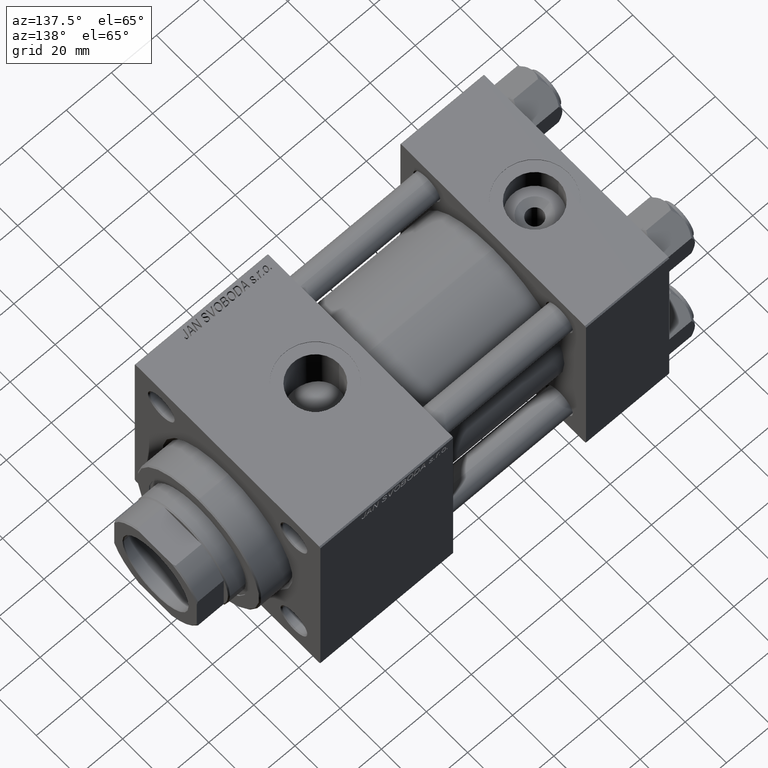
[diagram: clean part render]
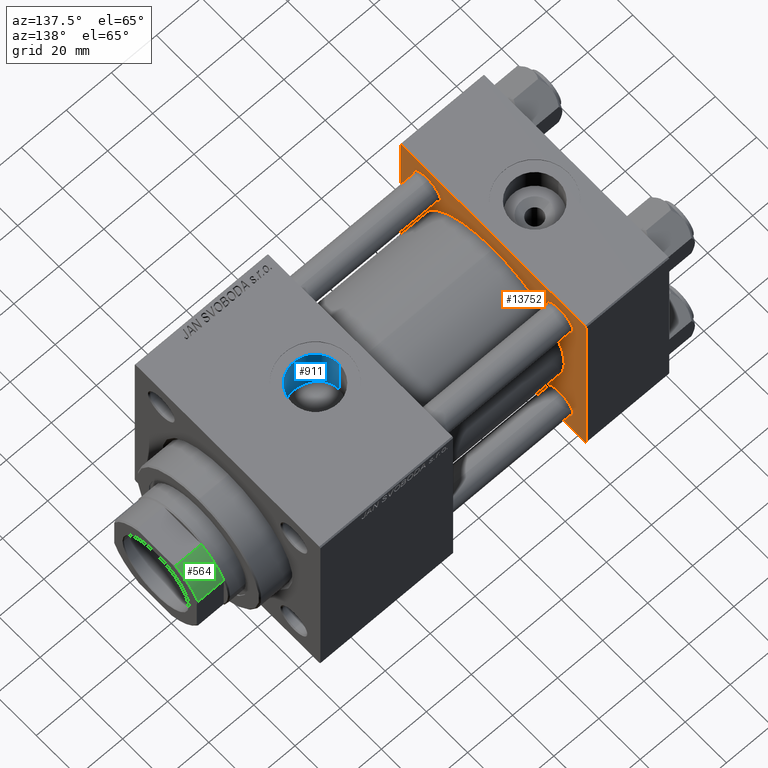
[diagram: same view with three faces highlighted in distinct colors, each labeled with its STEP entity id]
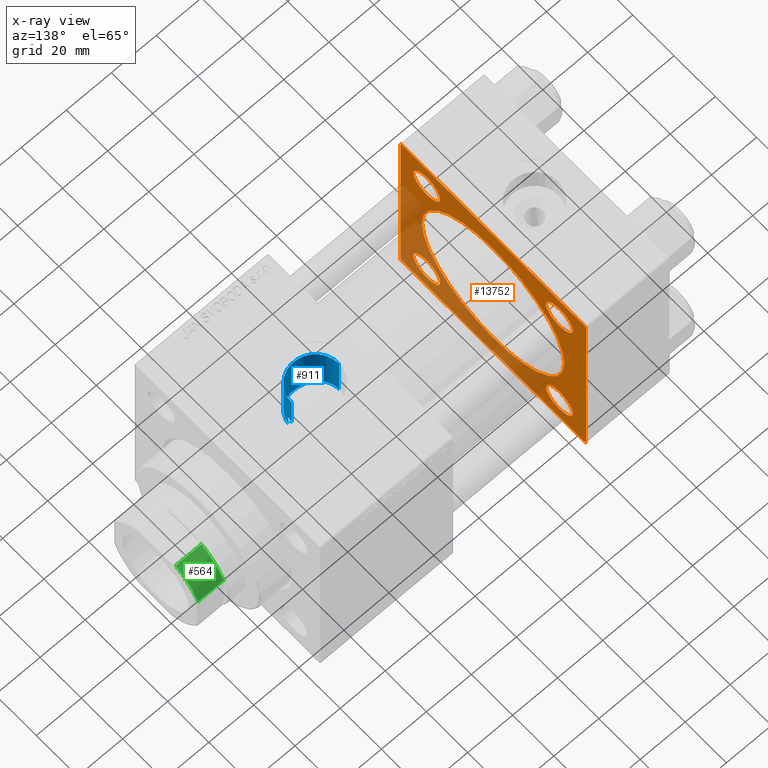
[diagram: x-ray of the same camera — body ghosted, the three highlighted faces saturated]
A machine part, auxiliary view with three faces highlighted in distinct colors.
The next image is the same camera in x-ray (body ghosted, the three faces saturated) — at least one of them is partly hidden behind the body in this view.
Their STEP definitions:

[orange] entity #13752 — the highlighted planar face has unit normal (-1, 0, 0).
#244 = EDGE_CURVE ( 'NONE', #15908, #43203, #35316, .T. ) ;
#428 = AXIS2_PLACEMENT_3D ( 'NONE', #48088, #17411, #9569 ) ;
#520 = AXIS2_PLACEMENT_3D ( 'NONE', #4960, #28288, #32081 ) ;
#543 = ORIENTED_EDGE ( 'NONE', *, *, #6413, .T. ) ;
#570 = EDGE_LOOP ( 'NONE', ( #40364, #5873 ) ) ;
#621 = ORIENTED_EDGE ( 'NONE', *, *, #25999, .F. ) ;
#998 = DIRECTION ( 'NONE',  ( 0.000000000000000000, 0.000000000000000000, 1.000000000000000000 ) ) ;
#1283 = EDGE_CURVE ( 'NONE', #10636, #7076, #48399, .T. ) ;
#1341 = VECTOR ( 'NONE', #13678, 1000.000000000000114 ) ;
#1342 = LINE ( 'NONE', #28722, #2357 ) ;
#1442 = VERTEX_POINT ( 'NONE', #18948 ) ;
#1823 = ORIENTED_EDGE ( 'NONE', *, *, #47737, .T. ) ;
#2014 = CARTESIAN_POINT ( 'NONE',  ( 37.00000000000000000, -45.00000000000000711, 44.49999999999997158 ) ) ;
#2178 = VECTOR ( 'NONE', #7011, 1000.000000000000000 ) ;
#2357 = VECTOR ( 'NONE', #16811, 1000.000000000000114 ) ;
#2594 = DIRECTION ( 'NONE',  ( 0.000000000000000000, -1.000000000000000000, -1.541976423090495633E-16 ) ) ;
#2973 = EDGE_CURVE ( 'NONE', #9036, #19111, #26276, .T. ) ;
#3904 = AXIS2_PLACEMENT_3D ( 'NONE', #25778, #6514, #49091 ) ;
#4089 = CARTESIAN_POINT ( 'NONE',  ( 37.00000000000000000, -45.00000000000000711, 44.49999999999997158 ) ) ;
#4285 = VERTEX_POINT ( 'NONE', #9742 ) ;
#4790 = EDGE_LOOP ( 'NONE', ( #46274, #621 ) ) ;
#4960 = CARTESIAN_POINT ( 'NONE',  ( 37.00000000000000000, 32.14999999999999147, -32.15000000000000568 ) ) ;
#5374 = ORIENTED_EDGE ( 'NONE', *, *, #27438, .T. ) ;
#5873 = ORIENTED_EDGE ( 'NONE', *, *, #12103, .T. ) ;
#6332 = CARTESIAN_POINT ( 'NONE',  ( 37.00000000000000000, 44.99999999999998579, 45.00000000000001421 ) ) ;
#6413 = EDGE_CURVE ( 'NONE', #20513, #4285, #41956, .T. ) ;
#6491 = CIRCLE ( 'NONE', #12137, 34.50000000000000000 ) ;
#6514 = DIRECTION ( 'NONE',  ( -1.000000000000000000, 0.000000000000000000, -0.000000000000000000 ) ) ;
#6583 = DIRECTION ( 'NONE',  ( 0.000000000000000000, -1.000000000000000000, -1.541976423090495387E-16 ) ) ;
#7011 = DIRECTION ( 'NONE',  ( 0.000000000000000000, 0.000000000000000000, -1.000000000000000000 ) ) ;
#7076 = VERTEX_POINT ( 'NONE', #4089 ) ;
#7112 = FACE_BOUND ( 'NONE', #43909, .T. ) ;
#7223 = VECTOR ( 'NONE', #2594, 1000.000000000000000 ) ;
#7252 = CARTESIAN_POINT ( 'NONE',  ( 37.00000000000000000, -45.00000000000000000, -44.49999999999995737 ) ) ;
#7371 = CARTESIAN_POINT ( 'NONE',  ( 37.00000000000000000, -44.49999999999995737, 45.00000000000000000 ) ) ;
#7662 = CARTESIAN_POINT ( 'NONE',  ( 37.00000000000000000, 32.14999999999999147, 38.65000000000004121 ) ) ;
#7706 = AXIS2_PLACEMENT_3D ( 'NONE', #20500, #36235, #998 ) ;
#7908 = ORIENTED_EDGE ( 'NONE', *, *, #15612, .T. ) ;
#8523 = LINE ( 'NONE', #15631, #9799 ) ;
#9036 = VERTEX_POINT ( 'NONE', #48734 ) ;
#9303 = CARTESIAN_POINT ( 'NONE',  ( 37.00000000000000000, -2.602085213965210642E-15, 0.000000000000000000 ) ) ;
#9364 = VERTEX_POINT ( 'NONE', #44627 ) ;
#9390 = ORIENTED_EDGE ( 'NONE', *, *, #1283, .T. ) ;
#9433 = EDGE_CURVE ( 'NONE', #29052, #10636, #41060, .T. ) ;
#9569 = DIRECTION ( 'NONE',  ( 0.000000000000000000, 0.000000000000000000, 1.000000000000000000 ) ) ;
#9742 = CARTESIAN_POINT ( 'NONE',  ( 37.00000000000000000, -32.14999999999997726, 38.65000000000004832 ) ) ;
#9799 = VECTOR ( 'NONE', #23971, 1000.000000000000000 ) ;
#9802 = AXIS2_PLACEMENT_3D ( 'NONE', #9303, #13110, #35419 ) ;
#10158 = CARTESIAN_POINT ( 'NONE',  ( 37.00000000000000000, 32.14999999999999147, -32.15000000000000568 ) ) ;
#10260 = EDGE_CURVE ( 'NONE', #1442, #19111, #25210, .T. ) ;
#10511 = AXIS2_PLACEMENT_3D ( 'NONE', #10158, #25604, #39198 ) ;
#10636 = VERTEX_POINT ( 'NONE', #7371 ) ;
#10731 = CARTESIAN_POINT ( 'NONE',  ( 37.00000000000000000, 32.14999999999999147, -25.64999999999997016 ) ) ;
#11127 = ORIENTED_EDGE ( 'NONE', *, *, #43581, .T. ) ;
#11239 = CIRCLE ( 'NONE', #19331, 6.500000000000033751 ) ;
#11288 = EDGE_CURVE ( 'NONE', #36189, #47016, #1342, .T. ) ;
#11341 = ORIENTED_EDGE ( 'NONE', *, *, #40175, .T. ) ;
#11395 = EDGE_CURVE ( 'NONE', #1442, #47016, #29460, .T. ) ;
#11475 = CIRCLE ( 'NONE', #27684, 6.500000000000033751 ) ;
#12103 = EDGE_CURVE ( 'NONE', #41048, #9364, #11239, .T. ) ;
#12137 = AXIS2_PLACEMENT_3D ( 'NONE', #45995, #19112, #34585 ) ;
#12153 = AXIS2_PLACEMENT_3D ( 'NONE', #22566, #34738, #38043 ) ;
#12996 = EDGE_LOOP ( 'NONE', ( #33240, #49564, #29002, #11127, #28045, #9390, #23031, #35504 ) ) ;
#13110 = DIRECTION ( 'NONE',  ( 1.000000000000000000, -0.000000000000000000, 0.000000000000000000 ) ) ;
#13115 = CARTESIAN_POINT ( 'NONE',  ( 37.00000000000000000, 44.49999999999998579, 45.00000000000001421 ) ) ;
#13547 = VERTEX_POINT ( 'NONE', #10731 ) ;
#13678 = DIRECTION ( 'NONE',  ( -0.000000000000000000, -0.7071067811865425767, -0.7071067811865524577 ) ) ;
#13752 = ADVANCED_FACE ( 'NONE', ( #26877, #37551, #26628, #7112, #22818, #45894 ), #30180, .F. ) ;
#15357 = VERTEX_POINT ( 'NONE', #47544 ) ;
#15612 = EDGE_CURVE ( 'NONE', #13547, #23861, #44245, .T. ) ;
#15631 = CARTESIAN_POINT ( 'NONE',  ( 37.00000000000000000, -45.00000000000000711, 45.00000000000000000 ) ) ;
#15908 = VERTEX_POINT ( 'NONE', #31770 ) ;
#16660 = LINE ( 'NONE', #13115, #18280 ) ;
#16811 = DIRECTION ( 'NONE',  ( 0.000000000000000000, 0.7071067811865474617, -0.7071067811865474617 ) ) ;
#16996 = EDGE_LOOP ( 'NONE', ( #543, #11341 ) ) ;
#17411 = DIRECTION ( 'NONE',  ( -1.000000000000000000, 0.000000000000000000, -0.000000000000000000 ) ) ;
#17587 = ORIENTED_EDGE ( 'NONE', *, *, #244, .T. ) ;
#17597 = DIRECTION ( 'NONE',  ( -0.000000000000000000, 0.7071067811865474617, 0.7071067811865474617 ) ) ;
#18280 = VECTOR ( 'NONE', #43780, 1000.000000000000114 ) ;
#18948 = CARTESIAN_POINT ( 'NONE',  ( 37.00000000000000000, 44.49999999999998579, -44.99999999999998579 ) ) ;
#19111 = VERTEX_POINT ( 'NONE', #38994 ) ;
#19112 = DIRECTION ( 'NONE',  ( 1.000000000000000000, -0.000000000000000000, 0.000000000000000000 ) ) ;
#19205 = CARTESIAN_POINT ( 'NONE',  ( 37.00000000000000000, -32.14999999999997726, -25.64999999999997726 ) ) ;
#19331 = AXIS2_PLACEMENT_3D ( 'NONE', #35138, #48057, #24227 ) ;
#19528 = CARTESIAN_POINT ( 'NONE',  ( 37.00000000000000000, 1.622946243093158675E-15, -34.50000000000000000 ) ) ;
#20500 = CARTESIAN_POINT ( 'NONE',  ( 37.00000000000000000, -32.14999999999997726, 32.15000000000001279 ) ) ;
#20513 = VERTEX_POINT ( 'NONE', #37636 ) ;
#22179 = CARTESIAN_POINT ( 'NONE',  ( 37.00000000000000000, -44.49999999999995737, -45.00000000000000000 ) ) ;
#22566 = CARTESIAN_POINT ( 'NONE',  ( 37.00000000000000000, 0.000000000000000000, 0.000000000000000000 ) ) ;
#22578 = CARTESIAN_POINT ( 'NONE',  ( 37.00000000000000000, 44.99999999999998579, -44.99999999999998579 ) ) ;
#22818 = FACE_BOUND ( 'NONE', #4790, .T. ) ;
#23031 = ORIENTED_EDGE ( 'NONE', *, *, #30131, .T. ) ;
#23861 = VERTEX_POINT ( 'NONE', #37155 ) ;
#23971 = DIRECTION ( 'NONE',  ( 0.000000000000000000, 7.709882115452476934E-17, -1.000000000000000000 ) ) ;
#24227 = DIRECTION ( 'NONE',  ( 0.000000000000000000, 0.000000000000000000, 1.000000000000000000 ) ) ;
#25210 = LINE ( 'NONE', #36871, #31471 ) ;
#25604 = DIRECTION ( 'NONE',  ( -1.000000000000000000, 0.000000000000000000, -0.000000000000000000 ) ) ;
#25778 = CARTESIAN_POINT ( 'NONE',  ( 37.00000000000000000, -32.14999999999997726, 32.15000000000001279 ) ) ;
#25999 = EDGE_CURVE ( 'NONE', #34046, #15357, #31646, .T. ) ;
#26276 = LINE ( 'NONE', #41729, #2178 ) ;
#26323 = CIRCLE ( 'NONE', #428, 6.500000000000033751 ) ;
#26628 = FACE_BOUND ( 'NONE', #16996, .T. ) ;
#26877 = FACE_BOUND ( 'NONE', #570, .T. ) ;
#27438 = EDGE_CURVE ( 'NONE', #23861, #13547, #29231, .T. ) ;
#27684 = AXIS2_PLACEMENT_3D ( 'NONE', #45525, #33385, #41236 ) ;
#27883 = EDGE_CURVE ( 'NONE', #15357, #34046, #6491, .T. ) ;
#28045 = ORIENTED_EDGE ( 'NONE', *, *, #9433, .T. ) ;
#28288 = DIRECTION ( 'NONE',  ( -1.000000000000000000, 0.000000000000000000, -0.000000000000000000 ) ) ;
#28722 = CARTESIAN_POINT ( 'NONE',  ( 37.00000000000000000, -44.49999999999998579, -45.00000000000000000 ) ) ;
#29002 = ORIENTED_EDGE ( 'NONE', *, *, #2973, .F. ) ;
#29052 = VERTEX_POINT ( 'NONE', #32860 ) ;
#29231 = CIRCLE ( 'NONE', #10511, 6.500000000000033751 ) ;
#29460 = LINE ( 'NONE', #22578, #7223 ) ;
#30131 = EDGE_CURVE ( 'NONE', #7076, #36189, #8523, .T. ) ;
#30166 = DIRECTION ( 'NONE',  ( 0.000000000000000000, 0.000000000000000000, 1.000000000000000000 ) ) ;
#30180 = PLANE ( 'NONE',  #12153 ) ;
#31471 = VECTOR ( 'NONE', #17597, 1000.000000000000114 ) ;
#31646 = CIRCLE ( 'NONE', #9802, 34.50000000000000000 ) ;
#31770 = CARTESIAN_POINT ( 'NONE',  ( 37.00000000000000000, 32.14999999999999147, 25.64999999999997016 ) ) ;
#32081 = DIRECTION ( 'NONE',  ( 0.000000000000000000, 0.000000000000000000, 1.000000000000000000 ) ) ;
#32860 = CARTESIAN_POINT ( 'NONE',  ( 37.00000000000000000, 44.49999999999998579, 45.00000000000001421 ) ) ;
#33052 = EDGE_CURVE ( 'NONE', #9364, #41048, #11475, .T. ) ;
#33240 = ORIENTED_EDGE ( 'NONE', *, *, #11395, .F. ) ;
#33385 = DIRECTION ( 'NONE',  ( -1.000000000000000000, 0.000000000000000000, -0.000000000000000000 ) ) ;
#34046 = VERTEX_POINT ( 'NONE', #19528 ) ;
#34585 = DIRECTION ( 'NONE',  ( 0.000000000000000000, 0.000000000000000000, 1.000000000000000000 ) ) ;
#34738 = DIRECTION ( 'NONE',  ( -1.000000000000000000, 0.000000000000000000, -0.000000000000000000 ) ) ;
#35138 = CARTESIAN_POINT ( 'NONE',  ( 37.00000000000000000, -32.14999999999997726, -32.15000000000001279 ) ) ;
#35316 = CIRCLE ( 'NONE', #44222, 6.500000000000033751 ) ;
#35419 = DIRECTION ( 'NONE',  ( 0.000000000000000000, 0.000000000000000000, 1.000000000000000000 ) ) ;
#35504 = ORIENTED_EDGE ( 'NONE', *, *, #11288, .T. ) ;
#36189 = VERTEX_POINT ( 'NONE', #7252 ) ;
#36235 = DIRECTION ( 'NONE',  ( -1.000000000000000000, 0.000000000000000000, -0.000000000000000000 ) ) ;
#36871 = CARTESIAN_POINT ( 'NONE',  ( 37.00000000000000000, 44.99999999999998579, -44.49999999999998579 ) ) ;
#37098 = VECTOR ( 'NONE', #6583, 1000.000000000000000 ) ;
#37155 = CARTESIAN_POINT ( 'NONE',  ( 37.00000000000000000, 32.14999999999999147, -38.65000000000004121 ) ) ;
#37551 = FACE_BOUND ( 'NONE', #37999, .T. ) ;
#37636 = CARTESIAN_POINT ( 'NONE',  ( 37.00000000000000000, -32.14999999999997726, 25.64999999999997726 ) ) ;
#37999 = EDGE_LOOP ( 'NONE', ( #5374, #7908 ) ) ;
#38043 = DIRECTION ( 'NONE',  ( -0.000000000000000000, 0.000000000000000000, 1.000000000000000000 ) ) ;
#38994 = CARTESIAN_POINT ( 'NONE',  ( 37.00000000000000000, 44.99999999999998579, -44.49999999999995737 ) ) ;
#39198 = DIRECTION ( 'NONE',  ( 0.000000000000000000, 0.000000000000000000, 1.000000000000000000 ) ) ;
#40175 = EDGE_CURVE ( 'NONE', #4285, #20513, #43312, .T. ) ;
#40364 = ORIENTED_EDGE ( 'NONE', *, *, #33052, .T. ) ;
#41048 = VERTEX_POINT ( 'NONE', #19205 ) ;
#41060 = LINE ( 'NONE', #6332, #37098 ) ;
#41236 = DIRECTION ( 'NONE',  ( 0.000000000000000000, 0.000000000000000000, 1.000000000000000000 ) ) ;
#41572 = CARTESIAN_POINT ( 'NONE',  ( 37.00000000000000000, 32.14999999999999147, 32.15000000000000568 ) ) ;
#41729 = CARTESIAN_POINT ( 'NONE',  ( 37.00000000000000000, 44.99999999999998579, 45.00000000000001421 ) ) ;
#41956 = CIRCLE ( 'NONE', #3904, 6.500000000000033751 ) ;
#43203 = VERTEX_POINT ( 'NONE', #7662 ) ;
#43312 = CIRCLE ( 'NONE', #7706, 6.500000000000033751 ) ;
#43581 = EDGE_CURVE ( 'NONE', #9036, #29052, #16660, .T. ) ;
#43780 = DIRECTION ( 'NONE',  ( 0.000000000000000000, -0.7071067811865474617, 0.7071067811865474617 ) ) ;
#43909 = EDGE_LOOP ( 'NONE', ( #17587, #1823 ) ) ;
#44222 = AXIS2_PLACEMENT_3D ( 'NONE', #41572, #49439, #30166 ) ;
#44245 = CIRCLE ( 'NONE', #520, 6.500000000000033751 ) ;
#44627 = CARTESIAN_POINT ( 'NONE',  ( 37.00000000000000000, -32.14999999999997726, -38.65000000000004832 ) ) ;
#45525 = CARTESIAN_POINT ( 'NONE',  ( 37.00000000000000000, -32.14999999999997726, -32.15000000000001279 ) ) ;
#45894 = FACE_OUTER_BOUND ( 'NONE', #12996, .T. ) ;
#45995 = CARTESIAN_POINT ( 'NONE',  ( 37.00000000000000000, -2.602085213965210642E-15, 0.000000000000000000 ) ) ;
#46274 = ORIENTED_EDGE ( 'NONE', *, *, #27883, .F. ) ;
#47016 = VERTEX_POINT ( 'NONE', #22179 ) ;
#47544 = CARTESIAN_POINT ( 'NONE',  ( 37.00000000000000000, -2.602085213965210642E-15, 34.50000000000000000 ) ) ;
#47737 = EDGE_CURVE ( 'NONE', #43203, #15908, #26323, .T. ) ;
#48057 = DIRECTION ( 'NONE',  ( -1.000000000000000000, 0.000000000000000000, -0.000000000000000000 ) ) ;
#48088 = CARTESIAN_POINT ( 'NONE',  ( 37.00000000000000000, 32.14999999999999147, 32.15000000000000568 ) ) ;
#48399 = LINE ( 'NONE', #2014, #1341 ) ;
#48734 = CARTESIAN_POINT ( 'NONE',  ( 37.00000000000000000, 44.99999999999998579, 44.50000000000001421 ) ) ;
#49091 = DIRECTION ( 'NONE',  ( 0.000000000000000000, 0.000000000000000000, 1.000000000000000000 ) ) ;
#49439 = DIRECTION ( 'NONE',  ( -1.000000000000000000, 0.000000000000000000, -0.000000000000000000 ) ) ;
#49564 = ORIENTED_EDGE ( 'NONE', *, *, #10260, .T. ) ;

[blue] entity #911 — the highlighted cylindrical surface (edge-blend (fillet) strip) has radius 10.48 mm, axis along (0, 0, -1).
#75 = EDGE_CURVE ( 'NONE', #22860, #18142, #47710, .T. ) ;
#410 = CARTESIAN_POINT ( 'NONE',  ( 126.4800000000000040, 3.352779466116923030E-15, 30.00000000000000000 ) ) ;
#814 = DIRECTION ( 'NONE',  ( -1.000000000000000000, 0.000000000000000000, 0.000000000000000000 ) ) ;
#911 = ADVANCED_FACE ( 'NONE', ( #38588 ), #4125, .F. ) ;
#2053 = CARTESIAN_POINT ( 'NONE',  ( 105.8365460779989888, -2.576987839526249324, 24.86882874518435926 ) ) ;
#2071 = CARTESIAN_POINT ( 'NONE',  ( 126.4800000000000040, -5.655464058400801311E-15, 67.79999999999999716 ) ) ;
#2302 = CARTESIAN_POINT ( 'NONE',  ( 105.5199999999999960, 3.061768933645607322E-15, 25.00000000000000000 ) ) ;
#3039 = CARTESIAN_POINT ( 'NONE',  ( 109.9278629608511153, -8.547622686286425520, 23.49425722221100088 ) ) ;
#3275 = EDGE_CURVE ( 'NONE', #30799, #9424, #14061, .T. ) ;
#4125 = CYLINDRICAL_SURFACE ( 'NONE', #48241, 10.48000000000000398 ) ;
#5486 = CARTESIAN_POINT ( 'NONE',  ( 105.5199999999999960, -6.938893903907227589E-15, 67.79999999999999716 ) ) ;
#5854 = CARTESIAN_POINT ( 'NONE',  ( 114.3833313512579366, -10.37495424086226059, 22.74565242126385556 ) ) ;
#6098 = CARTESIAN_POINT ( 'NONE',  ( 111.0221739552387561, -9.227930489537738978, 23.23508811885840686 ) ) ;
#6345 = CARTESIAN_POINT ( 'NONE',  ( 107.8404148361185548, -6.584472189995018709, 24.11877139329476449 ) ) ;
#7399 = ORIENTED_EDGE ( 'NONE', *, *, #75, .T. ) ;
#7917 = CARTESIAN_POINT ( 'NONE',  ( 116.0000000000000000, -6.938893903907227589E-15, 67.79999999999999716 ) ) ;
#8931 = ORIENTED_EDGE ( 'NONE', *, *, #31508, .F. ) ;
#9424 = VERTEX_POINT ( 'NONE', #29897 ) ;
#9673 = CARTESIAN_POINT ( 'NONE',  ( 125.6486676934356410, -4.103318642504094171, 24.66282370660225354 ) ) ;
#9915 = CARTESIAN_POINT ( 'NONE',  ( 116.3365788557130855, -10.47972957537892036, 22.69747272524820758 ) ) ;
#10075 = CIRCLE ( 'NONE', #19753, 10.48000000000000398 ) ;
#10160 = CARTESIAN_POINT ( 'NONE',  ( 107.2700483939780582, -5.806941605985024957, 24.31783162990696923 ) ) ;
#10405 = CARTESIAN_POINT ( 'NONE',  ( 110.7417737867749281, -9.071127878233122388, 23.29694815791200568 ) ) ;
#10648 = CARTESIAN_POINT ( 'NONE',  ( 118.2793881261891329, -10.24949000825645307, 22.80320365404041993 ) ) ;
#12101 = EDGE_CURVE ( 'NONE', #18142, #27042, #18364, .T. ) ;
#13468 = CARTESIAN_POINT ( 'NONE',  ( 125.9991245639265571, -3.203491301090201748, 24.80133124941671596 ) ) ;
#13719 = CARTESIAN_POINT ( 'NONE',  ( 125.5181834494522803, -4.397578030052900822, 24.61194086392342939 ) ) ;
#13810 = DIRECTION ( 'NONE',  ( -0.000000000000000000, -0.000000000000000000, 1.000000000000000000 ) ) ;
#13987 = ORIENTED_EDGE ( 'NONE', *, *, #44669, .F. ) ;
#14061 = B_SPLINE_CURVE_WITH_KNOTS ( 'NONE', 3,
 ( #44389, #22045, #13468, #9673, #13719, #25126, #37523, #33718, #40589, #21312, #49172, #36783, #14457, #18008, #45371, #29666, #37764, #10648, #17762, #29179, #9915, #44638, #29417, #5854, #14212, #25366, #40832, #6098, #10405, #21555, #3039, #41075, #37285, #41555, #6345, #33232, #10160, #21804, #37036, #22283, #18491, #2053, #48192, #17511, #32983, #2302 ),
 .UNSPECIFIED., .F., .F.,
 ( 4, 2, 2, 2, 2, 2, 2, 2, 2, 2, 2, 2, 2, 2, 2, 2, 2, 2, 2, 2, 2, 2, 4 ),
 ( 0.000000000000000000, 0.001950635593260295966, 0.002925953389890427470, 0.003901271186520558973, 0.005851906779780863613, 0.007802542373041168253, 0.009753177966301472893, 0.01072849576293164429, 0.01170381355956181743, 0.01365444915282212034, 0.01462976694945227092, 0.01560508474608242324, 0.01755572033934268278, 0.01950635593260294579, 0.02048167372923307555, 0.02145699152586320532, 0.02340762711912346486, 0.02438294491575359116, 0.02535826271238371746, 0.02730889830564399434, 0.02828421610227412411, 0.02925953389890425388, 0.03121016949216451342 ),
 .UNSPECIFIED. ) ;
#14212 = CARTESIAN_POINT ( 'NONE',  ( 113.7432686579793000, -10.25507452562443156, 22.80070824727648926 ) ) ;
#14457 = CARTESIAN_POINT ( 'NONE',  ( 121.2804615657551466, -9.075224083592484448, 23.29671858359550640 ) ) ;
#15877 = CARTESIAN_POINT ( 'NONE',  ( 126.4800000000000040, -0.6446704584514658665, 30.00000000000000000 ) ) ;
#16649 = LINE ( 'NONE', #5486, #41398 ) ;
#16826 = CARTESIAN_POINT ( 'NONE',  ( 126.2999999999999972, -1.934011375354403928, 29.93759509379468753 ) ) ;
#17511 = CARTESIAN_POINT ( 'NONE',  ( 105.5814376118526781, -1.305463397218002530, 24.97406791321481734 ) ) ;
#17704 = ORIENTED_EDGE ( 'NONE', *, *, #3275, .T. ) ;
#17762 = CARTESIAN_POINT ( 'NONE',  ( 117.6440388710335299, -10.37086982902511778, 22.74752090709942465 ) ) ;
#18008 = CARTESIAN_POINT ( 'NONE',  ( 120.4196187691514268, -9.507918361243600458, 23.12193083781265912 ) ) ;
#18142 = VERTEX_POINT ( 'NONE', #25991 ) ;
#18364 = B_SPLINE_CURVE_WITH_KNOTS ( 'NONE', 3,
 ( #410, #15877, #31334, #46803 ),
 .UNSPECIFIED., .F., .F.,
 ( 4, 4 ),
 ( 0.001934011375354386698, 0.003868022750708794213 ),
 .UNSPECIFIED. ) ;
#18491 = CARTESIAN_POINT ( 'NONE',  ( 106.0163520438033373, -3.203659694230076127, 24.79588824877905751 ) ) ;
#18608 = CARTESIAN_POINT ( 'NONE',  ( 116.0000000000000000, -6.938893903907227589E-15, 44.79999999999999005 ) ) ;
#19051 = VECTOR ( 'NONE', #40097, 1000.000000000000000 ) ;
#19753 = AXIS2_PLACEMENT_3D ( 'NONE', #18608, #22396, #38816 ) ;
#21312 = CARTESIAN_POINT ( 'NONE',  ( 123.3170701525835966, -7.529745975807653480, 23.84416219986019314 ) ) ;
#21555 = CARTESIAN_POINT ( 'NONE',  ( 110.1942257187214693, -8.730824066922336257, 23.42660593359924093 ) ) ;
#21804 = CARTESIAN_POINT ( 'NONE',  ( 106.7634153578573404, -4.992475095957402687, 24.50275936296847945 ) ) ;
#22045 = CARTESIAN_POINT ( 'NONE',  ( 126.1785100649303644, -2.581032560009073773, 24.87487543305312343 ) ) ;
#22067 = ORIENTED_EDGE ( 'NONE', *, *, #37927, .F. ) ;
#22283 = CARTESIAN_POINT ( 'NONE',  ( 106.1217545085731047, -3.515057092907704739, 24.75353681254874871 ) ) ;
#22396 = DIRECTION ( 'NONE',  ( -0.000000000000000000, -0.000000000000000000, -1.000000000000000000 ) ) ;
#22860 = VERTEX_POINT ( 'NONE', #41731 ) ;
#25126 = CARTESIAN_POINT ( 'NONE',  ( 125.2296265764648240, -4.974786625258090567, 24.50179225389075199 ) ) ;
#25366 = CARTESIAN_POINT ( 'NONE',  ( 112.4839847618188031, -9.894292633687737037, 22.95956932049218224 ) ) ;
#25694 = CARTESIAN_POINT ( 'NONE',  ( 105.5199999999999960, -6.938893903907227589E-15, 44.79999999999999005 ) ) ;
#25991 = CARTESIAN_POINT ( 'NONE',  ( 126.4800000000000040, 3.352779466116923030E-15, 30.00000000000000000 ) ) ;
#27042 = VERTEX_POINT ( 'NONE', #16826 ) ;
#27788 = CARTESIAN_POINT ( 'NONE',  ( 126.2999999999999972, -1.934011375354403928, 24.92507973909010133 ) ) ;
#28311 = DIRECTION ( 'NONE',  ( 0.000000000000000000, 0.000000000000000000, -1.000000000000000000 ) ) ;
#29179 = CARTESIAN_POINT ( 'NONE',  ( 116.6678097429676200, -10.46380816682964721, 22.70484267188756533 ) ) ;
#29417 = CARTESIAN_POINT ( 'NONE',  ( 115.3546047890858688, -10.46516069043768127, 22.70421781554146534 ) ) ;
#29666 = CARTESIAN_POINT ( 'NONE',  ( 119.5171666001240283, -9.877540575260040256, 22.96629679004111324 ) ) ;
#29897 = CARTESIAN_POINT ( 'NONE',  ( 105.5199999999999960, 3.061768933645607322E-15, 25.00000000000000000 ) ) ;
#30799 = VERTEX_POINT ( 'NONE', #27788 ) ;
#31334 = CARTESIAN_POINT ( 'NONE',  ( 126.4210485436893237, -1.289340916902936396, 29.97924172559974210 ) ) ;
#31508 = EDGE_CURVE ( 'NONE', #43831, #9424, #16649, .T. ) ;
#31897 = ORIENTED_EDGE ( 'NONE', *, *, #12101, .T. ) ;
#32983 = CARTESIAN_POINT ( 'NONE',  ( 105.5199999999999818, -0.6581386959017271332, 25.00000000000000000 ) ) ;
#33232 = CARTESIAN_POINT ( 'NONE',  ( 107.4515334306830994, -6.071064435560087347, 24.25309432138730514 ) ) ;
#33718 = CARTESIAN_POINT ( 'NONE',  ( 124.5605886890353844, -6.079608507556195640, 24.25599010009743139 ) ) ;
#36783 = CARTESIAN_POINT ( 'NONE',  ( 121.8209243987476356, -8.738118835249188976, 23.42674969495903881 ) ) ;
#37036 = CARTESIAN_POINT ( 'NONE',  ( 106.4757274622522800, -4.420234614575347720, 24.61370289774655973 ) ) ;
#37285 = CARTESIAN_POINT ( 'NONE',  ( 108.6931338099205675, -7.539777678112572268, 23.84100615567446368 ) ) ;
#37375 = CARTESIAN_POINT ( 'NONE',  ( 126.2999999999999972, -1.934011375354403928, 67.79999999999999716 ) ) ;
#37523 = CARTESIAN_POINT ( 'NONE',  ( 125.0706658558967064, -5.259006608444891206, 24.44220782432770989 ) ) ;
#37764 = CARTESIAN_POINT ( 'NONE',  ( 119.2104795289410077, -9.981359381819748577, 22.92121289265048034 ) ) ;
#37927 = EDGE_CURVE ( 'NONE', #22860, #43831, #10075, .T. ) ;
#38588 = FACE_OUTER_BOUND ( 'NONE', #49293, .T. ) ;
#38816 = DIRECTION ( 'NONE',  ( 1.000000000000000000, 0.000000000000000000, 0.000000000000000000 ) ) ;
#38845 = DIRECTION ( 'NONE',  ( 0.000000000000000000, 0.000000000000000000, -1.000000000000000000 ) ) ;
#40016 = VECTOR ( 'NONE', #13810, 1000.000000000000000 ) ;
#40097 = DIRECTION ( 'NONE',  ( 0.000000000000000000, 0.000000000000000000, -1.000000000000000000 ) ) ;
#40589 = CARTESIAN_POINT ( 'NONE',  ( 124.1756005286475499, -6.587575128527903168, 24.12146345890799637 ) ) ;
#40832 = CARTESIAN_POINT ( 'NONE',  ( 111.8833764951161385, -9.658986692485468595, 23.06079053540467783 ) ) ;
#41075 = CARTESIAN_POINT ( 'NONE',  ( 109.1629303359419225, -7.968317617044775147, 23.69965861349108494 ) ) ;
#41398 = VECTOR ( 'NONE', #28311, 1000.000000000000000 ) ;
#41555 = CARTESIAN_POINT ( 'NONE',  ( 108.0468296896718954, -6.832241012558617044, 24.04955172625635029 ) ) ;
#41731 = CARTESIAN_POINT ( 'NONE',  ( 126.4800000000000040, -5.655464058400802100E-15, 44.79999999999999005 ) ) ;
#43831 = VERTEX_POINT ( 'NONE', #25694 ) ;
#44389 = CARTESIAN_POINT ( 'NONE',  ( 126.2999999999999972, -1.934011375354403928, 24.92507973909010133 ) ) ;
#44638 = CARTESIAN_POINT ( 'NONE',  ( 115.6804775589004919, -10.48026348470392755, 22.69722620448673922 ) ) ;
#44669 = EDGE_CURVE ( 'NONE', #30799, #27042, #48534, .T. ) ;
#45371 = CARTESIAN_POINT ( 'NONE',  ( 120.1231419626886918, -9.640330340006606491, 23.06687293500593583 ) ) ;
#46803 = CARTESIAN_POINT ( 'NONE',  ( 126.2999999999999972, -1.934011375354403928, 29.93759509379468753 ) ) ;
#47710 = LINE ( 'NONE', #2071, #19051 ) ;
#48192 = CARTESIAN_POINT ( 'NONE',  ( 105.7616823727591822, -2.261044314697987279, 24.89959345673755564 ) ) ;
#48241 = AXIS2_PLACEMENT_3D ( 'NONE', #7917, #38845, #814 ) ;
#48534 = LINE ( 'NONE', #37375, #40016 ) ;
#49172 = CARTESIAN_POINT ( 'NONE',  ( 122.8384446673738069, -7.967029318769887958, 23.70007944887655782 ) ) ;
#49293 = EDGE_LOOP ( 'NONE', ( #22067, #7399, #31897, #13987, #17704, #8931 ) ) ;

[green] entity #564 — the highlighted cylindrical surface (partial cylindrical patch) has radius 22 mm, axis along (1, 0, 0).
#564 = ADVANCED_FACE ( 'NONE', ( #22485 ), #48643, .T. ) ;
#1118 = DIRECTION ( 'NONE',  ( 1.000000000000000000, 0.000000000000000000, 0.000000000000000000 ) ) ;
#1489 = DIRECTION ( 'NONE',  ( -0.000000000000000000, -0.000000000000000000, 1.000000000000000000 ) ) ;
#3743 = CARTESIAN_POINT ( 'NONE',  ( 0.000000000000000000, 0.000000000000000000, 138.0000000000000000 ) ) ;
#4305 = ORIENTED_EDGE ( 'NONE', *, *, #29355, .F. ) ;
#4524 = AXIS2_PLACEMENT_3D ( 'NONE', #6782, #25814, #45327 ) ;
#6113 = LINE ( 'NONE', #29680, #34855 ) ;
#6782 = CARTESIAN_POINT ( 'NONE',  ( 0.000000000000000000, 0.000000000000000000, -0.001000000000001000089 ) ) ;
#7385 = AXIS2_PLACEMENT_3D ( 'NONE', #31545, #47012, #1118 ) ;
#7470 = ORIENTED_EDGE ( 'NONE', *, *, #12662, .T. ) ;
#7976 = VERTEX_POINT ( 'NONE', #47472 ) ;
#12662 = EDGE_CURVE ( 'NONE', #34659, #34404, #28862, .T. ) ;
#16646 = AXIS2_PLACEMENT_3D ( 'NONE', #3743, #46331, #30111 ) ;
#16947 = ORIENTED_EDGE ( 'NONE', *, *, #47470, .T. ) ;
#22485 = FACE_OUTER_BOUND ( 'NONE', #35488, .T. ) ;
#22753 = CIRCLE ( 'NONE', #7385, 22.00000000000000000 ) ;
#23554 = CARTESIAN_POINT ( 'NONE',  ( -20.00000000000000000, -9.165151389911677882, 149.5000000000000568 ) ) ;
#25814 = DIRECTION ( 'NONE',  ( -0.000000000000000000, -0.000000000000000000, 1.000000000000000000 ) ) ;
#27963 = CIRCLE ( 'NONE', #16646, 22.00000000000004619 ) ;
#28862 = LINE ( 'NONE', #32156, #40461 ) ;
#29355 = EDGE_CURVE ( 'NONE', #7976, #39965, #6113, .T. ) ;
#29680 = CARTESIAN_POINT ( 'NONE',  ( -20.00000000000000000, -9.165151389911677882, -0.001000000000001000089 ) ) ;
#30111 = DIRECTION ( 'NONE',  ( 1.000000000000000000, 0.000000000000000000, 0.000000000000000000 ) ) ;
#31545 = CARTESIAN_POINT ( 'NONE',  ( 0.000000000000000000, 0.000000000000000000, 149.5000000000000568 ) ) ;
#31746 = EDGE_CURVE ( 'NONE', #34404, #39965, #22753, .T. ) ;
#32156 = CARTESIAN_POINT ( 'NONE',  ( -9.165151389911676105, -20.00000000000000000, -0.001000000000001000089 ) ) ;
#34404 = VERTEX_POINT ( 'NONE', #42173 ) ;
#34659 = VERTEX_POINT ( 'NONE', #43363 ) ;
#34855 = VECTOR ( 'NONE', #40604, 1000.000000000000000 ) ;
#35488 = EDGE_LOOP ( 'NONE', ( #7470, #41345, #4305, #16947 ) ) ;
#39965 = VERTEX_POINT ( 'NONE', #23554 ) ;
#40461 = VECTOR ( 'NONE', #1489, 1000.000000000000000 ) ;
#40604 = DIRECTION ( 'NONE',  ( -0.000000000000000000, -0.000000000000000000, 1.000000000000000000 ) ) ;
#41345 = ORIENTED_EDGE ( 'NONE', *, *, #31746, .T. ) ;
#42173 = CARTESIAN_POINT ( 'NONE',  ( -9.165151389911676105, -20.00000000000000000, 149.5000000000000568 ) ) ;
#43363 = CARTESIAN_POINT ( 'NONE',  ( -9.165151389911676105, -20.00000000000000000, 138.0000000000000568 ) ) ;
#45327 = DIRECTION ( 'NONE',  ( 1.000000000000000000, 0.000000000000000000, 0.000000000000000000 ) ) ;
#46331 = DIRECTION ( 'NONE',  ( 0.000000000000000000, 0.000000000000000000, 1.000000000000000000 ) ) ;
#47012 = DIRECTION ( 'NONE',  ( -0.000000000000000000, -0.000000000000000000, -1.000000000000000000 ) ) ;
#47470 = EDGE_CURVE ( 'NONE', #7976, #34659, #27963, .T. ) ;
#47472 = CARTESIAN_POINT ( 'NONE',  ( -20.00000000000000000, -9.165151389911677882, 138.0000000000000568 ) ) ;
#48643 = CYLINDRICAL_SURFACE ( 'NONE', #4524, 22.00000000000000000 ) ;